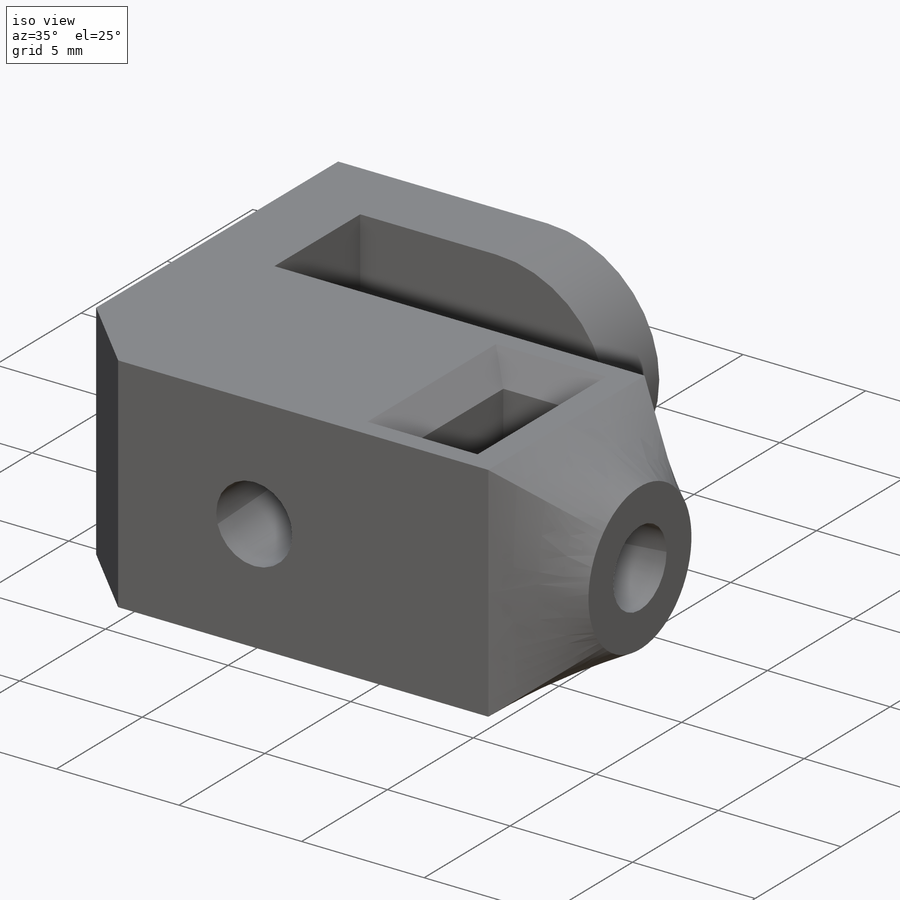
[diagram: iso view]
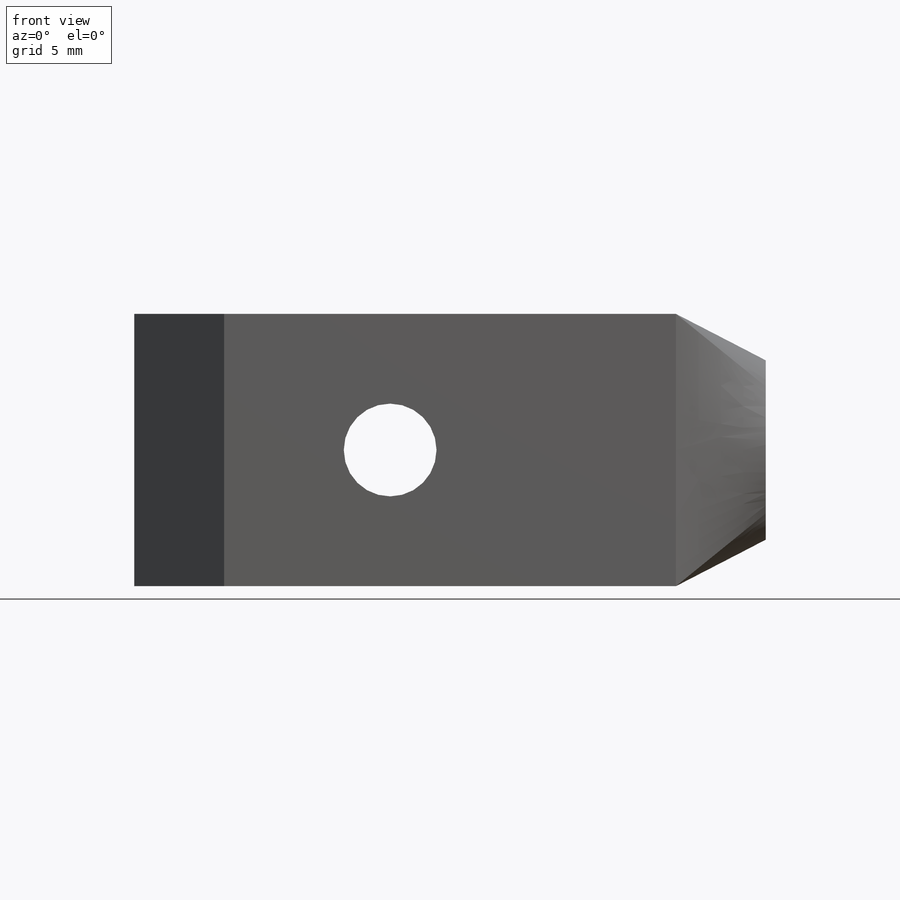
[diagram: front view]
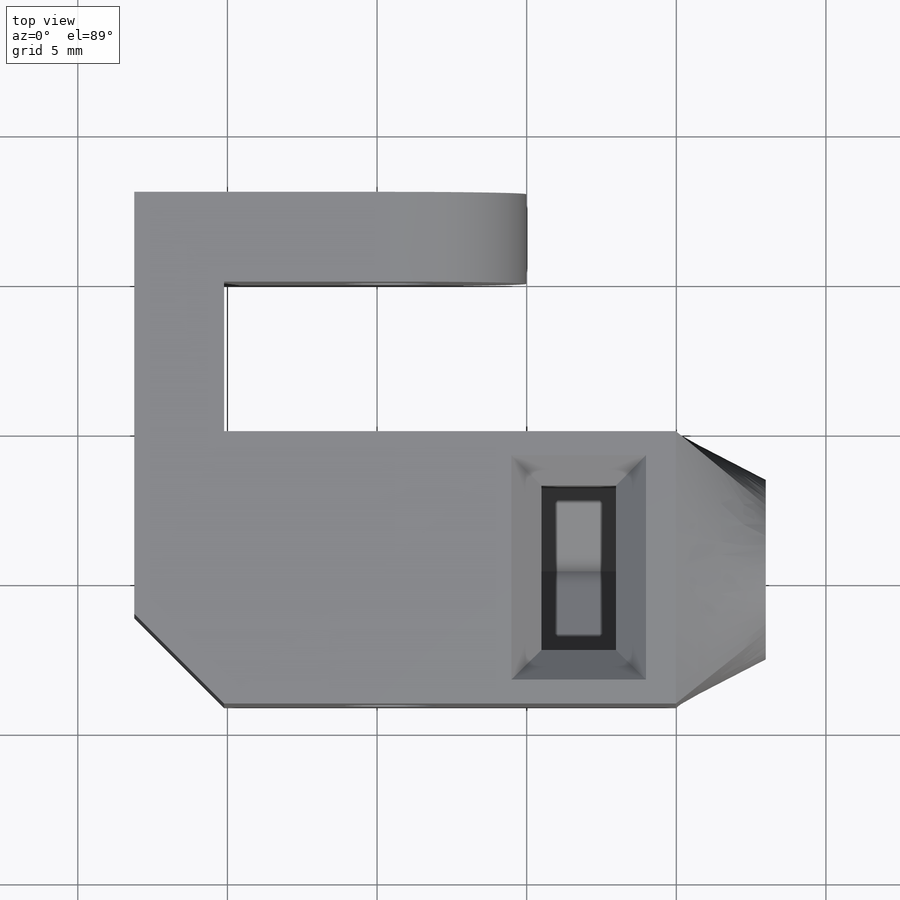
[diagram: top view]
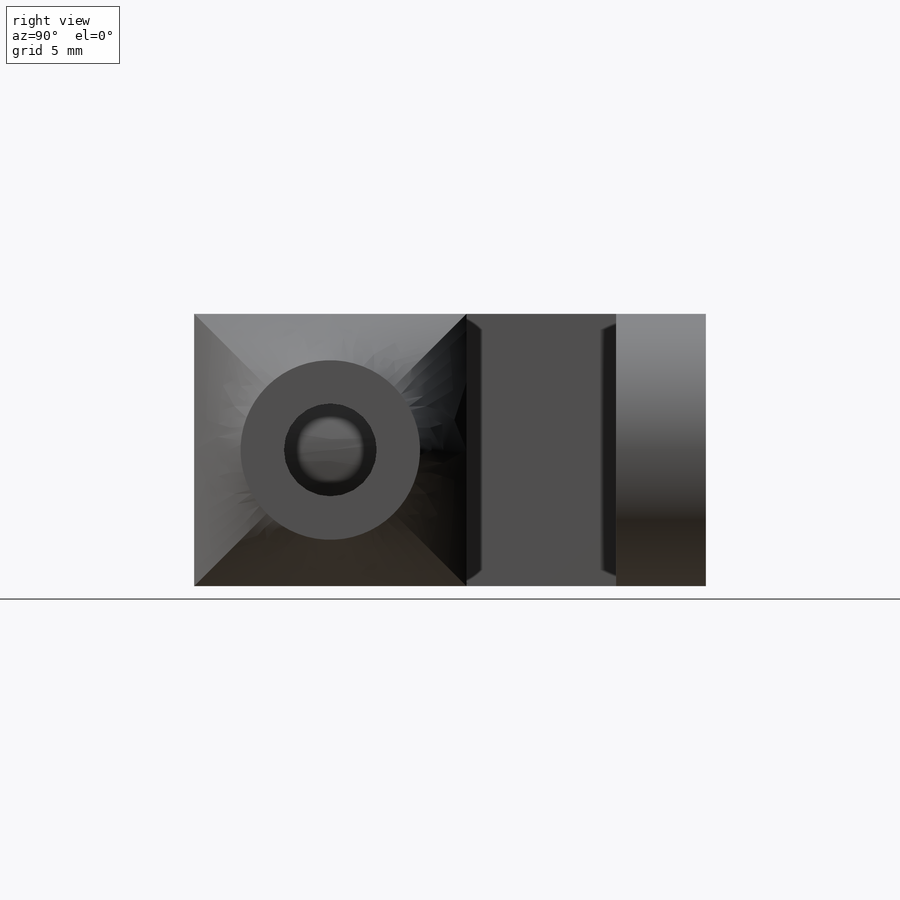
[diagram: right view]
SOLIDWORKS PART (.sldprt)
format: sldprt  version: not decoded by parser v0  size: 317,440 bytes
history: native  units: mm
features: sketch x6, extrude x3, plane x3, cut_extrude x2, chamfer x2, material x1 (+13 scaffold rows collapsed)
feature tree (30):
  scaffold x13  (default folders/planes/origin — collapsed)
  material  "Material <not specified>"
  sketch  "Sketch1"  dims[D1=1.0mm D2=1.0mm D3=4.0mm D4=9.1mm]
  extrude  "Boss-Extrude1"  Depth=9.1mm
  plane  "Plane4"  Offset=5mm
  sketch  "Sketch2"  dims[D1=0.0mm D2=0.0mm D3=0.0mm]
  extrude  "Boss-Extrude2"  Depth=3mm
  sketch  "Sketch3"  dims[D1=9.1mm D2=15.1mm]
  extrude  "Boss-Extrude3"  Depth=3mm
  sketch  "3DSketch2"  dims[c1.D2=6.0mm c1.D1=9.1mm c2.D1=~4.413016mm c3.D1=3.0mm c3.D2=~7.756983mm]
  sketch  "Sketch4"  dims[D1=3.1mm]
  cut_extrude  "Cut-Extrude1"  Depth=2mm
  plane  "Plane1"
  plane  "Plane2"  Offset=2mm
  sketch  "Sketch5"  dims[c1.D1=~3.770076mm c2.D1=30.0deg c2.D2=5.5mm]
  cut_extrude  "Cut-Extrude2"  Depth=2.5mm
  chamfer  "Chamfer1"  Distance=1mm Angle=45deg
  chamfer  "Chamfer2"  Distance=3mm Angle=45deg
decode coverage: 13 of 13 modeling features carry decoded parameters
note: ~ marks probable driven/reference dimensions
note: suppression state not decoded; provenance and decode notes live in map.json
